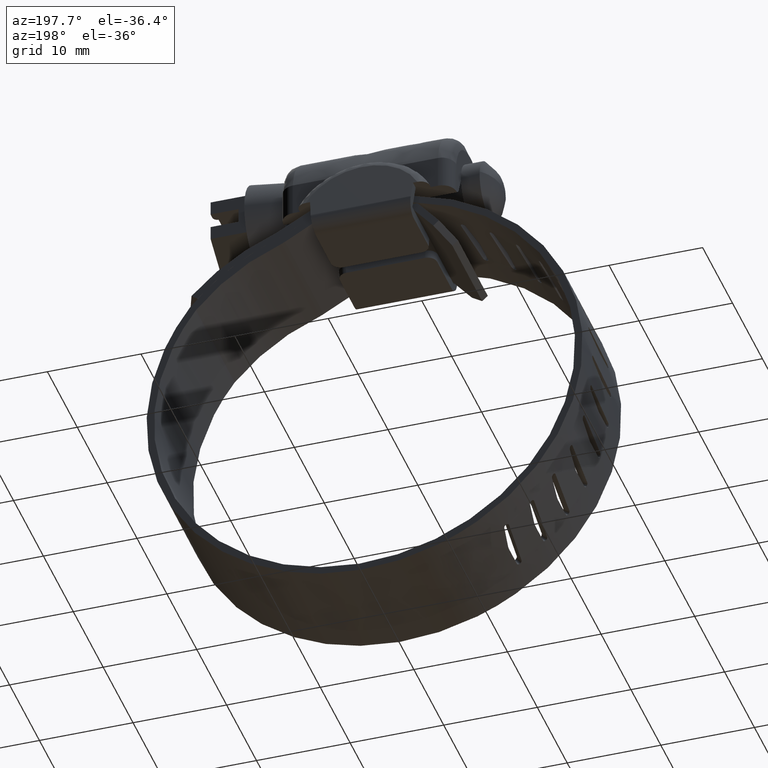
[diagram: clean part render]
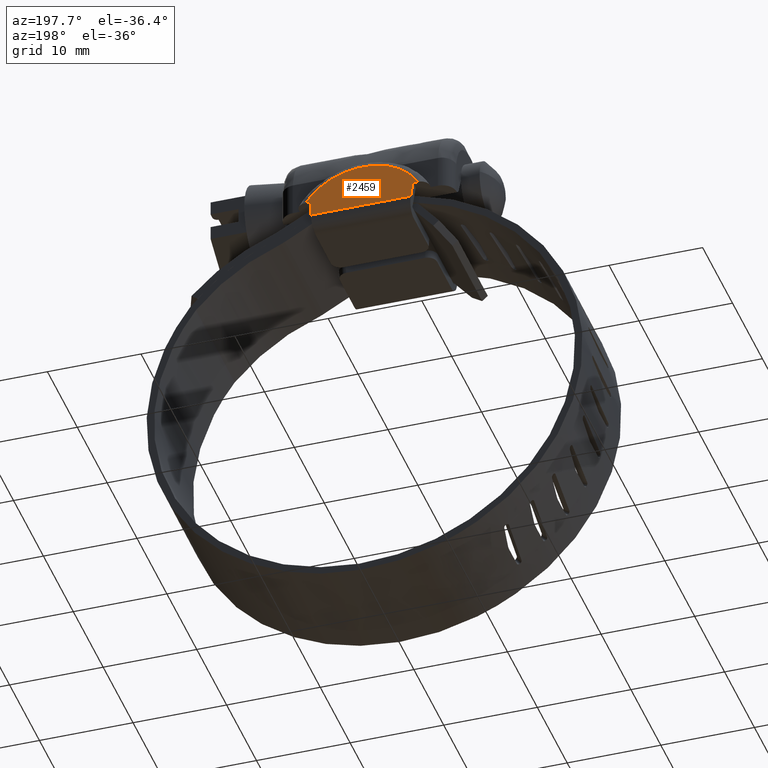
[diagram: same view with one face highlighted and labeled with its STEP entity id]
A machine part, auxiliary view. The second image highlights one B-rep face of the part: STEP entity #2459.
In plain terms, the highlighted face is a freeform B-spline surface patch.
Its self-contained STEP definition (entity closure, byte-faithful):
#1482=CARTESIAN_POINT('',(-5.344276520702330,7.807549492446740,11.208401248428160));
#1483=VERTEX_POINT('',#1482);
#1498=CARTESIAN_POINT('',(5.344276520702420,7.807549492446690,11.208401248428119));
#1499=VERTEX_POINT('',#1498);
#1500=CARTESIAN_POINT('',(5.344276520702420,7.807549492446690,11.208401248428119));
#1501=CARTESIAN_POINT('',(-5.344276520702330,7.807549492446740,11.208401248428160));
#1502=QUASI_UNIFORM_CURVE('',1,(#1500,#1501),.UNSPECIFIED.,.F.,.U.);
#1503=EDGE_CURVE('',#1499,#1483,#1502,.T.);
#1882=CARTESIAN_POINT('',(5.964274546191691,7.515887096035680,13.077083000000201));
#1883=VERTEX_POINT('',#1882);
#1909=CARTESIAN_POINT('',(-5.964274546191691,7.515887096035680,13.077083000000201));
#1910=VERTEX_POINT('',#1909);
#1911=CARTESIAN_POINT('',(-5.964274546191691,7.515887096035680,13.077083000000201));
#1912=CARTESIAN_POINT('',(-4.101574888512248,6.945540499392355,16.731295165618835));
#1913=CARTESIAN_POINT('',(2.153124E-015,6.945540499392355,16.731295165618839));
#1914=CARTESIAN_POINT('',(4.101574888512252,6.945540499392355,16.731295165618835));
#1915=CARTESIAN_POINT('',(5.964274546191691,7.515887096035680,13.077083000000201));
#1923=(BOUNDED_CURVE()B_SPLINE_CURVE(2,(#1911,#1912,#1913,#1914,#1915),.UNSPECIFIED.,.F.,.U.)B_SPLINE_CURVE_WITH_KNOTS((3,2,3),(0.0,0.500000000000000,1.0),.UNSPECIFIED.)CURVE()GEOMETRIC_REPRESENTATION_ITEM()RATIONAL_B_SPLINE_CURVE((1.0,0.852684743861974,1.0,0.852684743861974,1.0))REPRESENTATION_ITEM(''));
#1924=EDGE_CURVE('',#1910,#1883,#1923,.T.);
#2426=CARTESIAN_POINT('',(-6.560105438259712,6.902483235858931,17.007163167896628));
#2427=CARTESIAN_POINT('',(-6.560105438259712,7.850606794514997,10.932532999257729));
#2428=CARTESIAN_POINT('',(6.560105864857871,6.902483235858931,17.007163167896628));
#2429=CARTESIAN_POINT('',(6.560105864857871,7.850606794514997,10.932532999257729));
#2430=B_SPLINE_SURFACE_WITH_KNOTS('',1,1,((#2426,#2428),(#2427,#2429)),.UNSPECIFIED.,.F.,.F.,.U.,(2,2),(2,2),(0.0,6.148176149738759),(0.0,13.120211303117580),.UNSPECIFIED.);
#2431=CARTESIAN_POINT('',(5.500000000000100,7.515887096035680,13.077083000000201));
#2432=VERTEX_POINT('',#2431);
#2433=CARTESIAN_POINT('',(5.344276520702420,7.807549492446690,11.208401248428119));
#2434=CARTESIAN_POINT('',(5.500000000000100,7.515887096035680,13.077083000000201));
#2435=QUASI_UNIFORM_CURVE('',1,(#2433,#2434),.UNSPECIFIED.,.F.,.U.);
#2436=EDGE_CURVE('',#1499,#2432,#2435,.T.);
#2437=ORIENTED_EDGE('',*,*,#2436,.F.);
#2438=ORIENTED_EDGE('',*,*,#1503,.T.);
#2439=CARTESIAN_POINT('',(-5.500000000000000,7.515887096035680,13.077083000000201));
#2440=VERTEX_POINT('',#2439);
#2441=CARTESIAN_POINT('',(-5.500000000000000,7.515887096035680,13.077083000000201));
#2442=CARTESIAN_POINT('',(-5.344276520702330,7.807549492446740,11.208401248428160));
#2443=QUASI_UNIFORM_CURVE('',1,(#2441,#2442),.UNSPECIFIED.,.F.,.U.);
#2444=EDGE_CURVE('',#2440,#1483,#2443,.T.);
#2445=ORIENTED_EDGE('',*,*,#2444,.F.);
#2446=CARTESIAN_POINT('',(-5.964274546191691,7.515887096035680,13.077083000000201));
#2447=CARTESIAN_POINT('',(-5.500000000000000,7.515887096035680,13.077083000000201));
#2448=QUASI_UNIFORM_CURVE('',1,(#2446,#2447),.UNSPECIFIED.,.F.,.U.);
#2449=EDGE_CURVE('',#1910,#2440,#2448,.T.);
#2450=ORIENTED_EDGE('',*,*,#2449,.F.);
#2451=ORIENTED_EDGE('',*,*,#1924,.T.);
#2452=CARTESIAN_POINT('',(5.500000000000100,7.515887096035680,13.077083000000201));
#2453=CARTESIAN_POINT('',(5.964274546191691,7.515887096035680,13.077083000000201));
#2454=QUASI_UNIFORM_CURVE('',1,(#2452,#2453),.UNSPECIFIED.,.F.,.U.);
#2455=EDGE_CURVE('',#2432,#1883,#2454,.T.);
#2456=ORIENTED_EDGE('',*,*,#2455,.F.);
#2457=EDGE_LOOP('',(#2437,#2438,#2445,#2450,#2451,#2456));
#2458=FACE_OUTER_BOUND('',#2457,.T.);
#2459=ADVANCED_FACE('',(#2458),#2430,.F.);